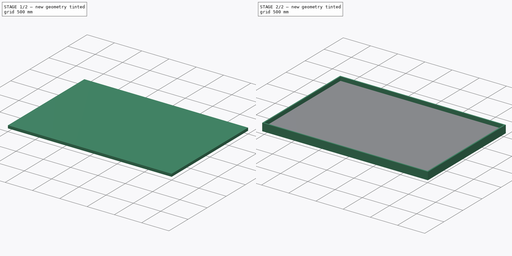
[diagram: build sequence overview — one tinted view per stage of 2, left to right]
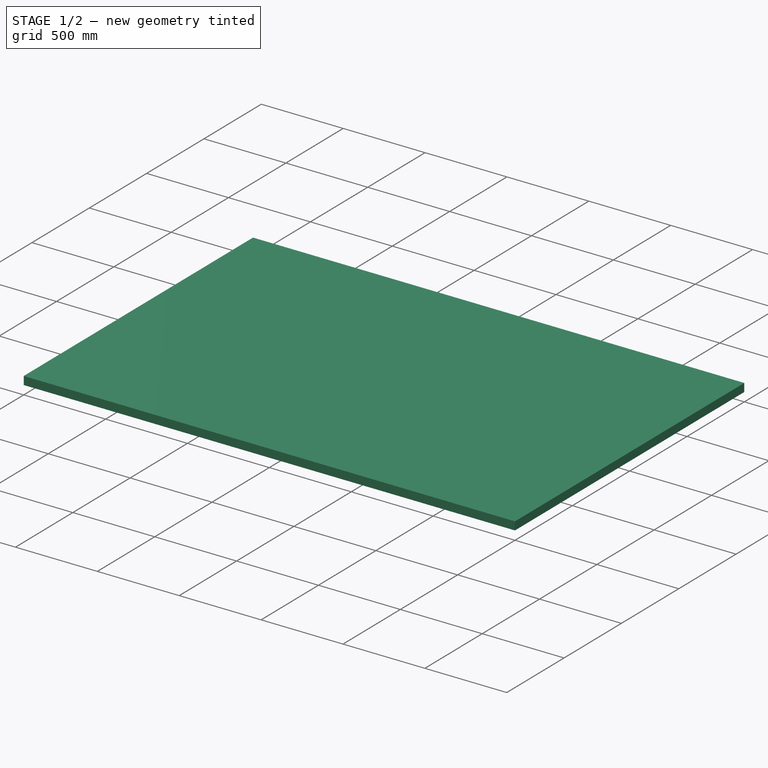
[diagram: stage 1 of 2 — iso view after this stage's code; geometry added in this stage tinted green]
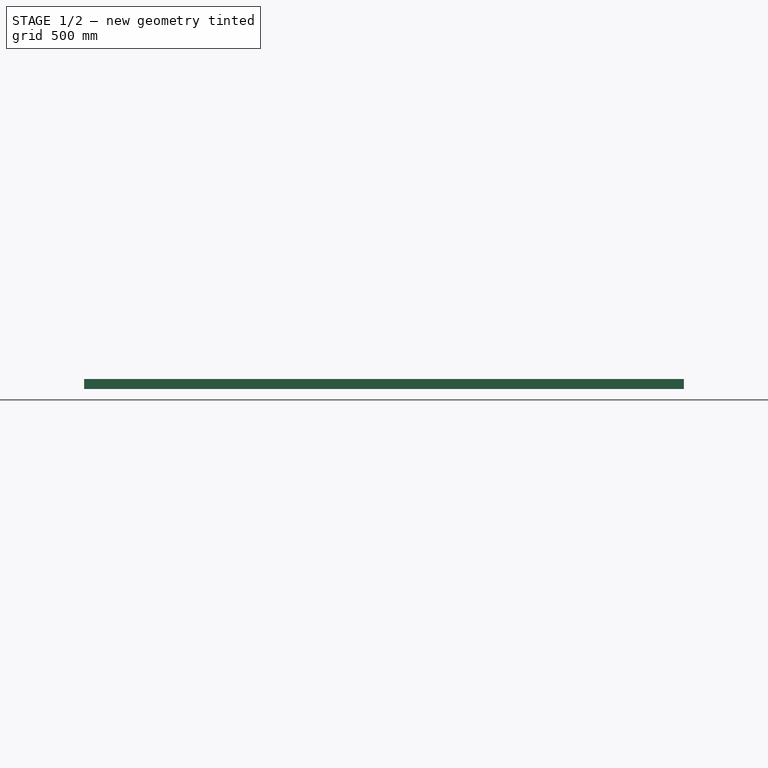
[diagram: stage 1 of 2 — front view after this stage's code; geometry added in this stage tinted green]
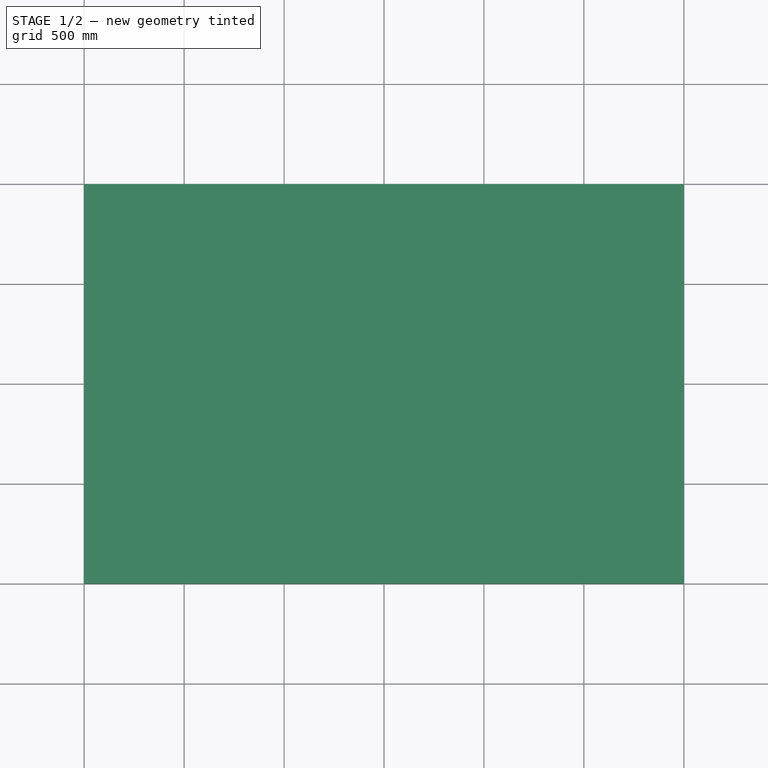
[diagram: stage 1 of 2 — top view after this stage's code; geometry added in this stage tinted green]
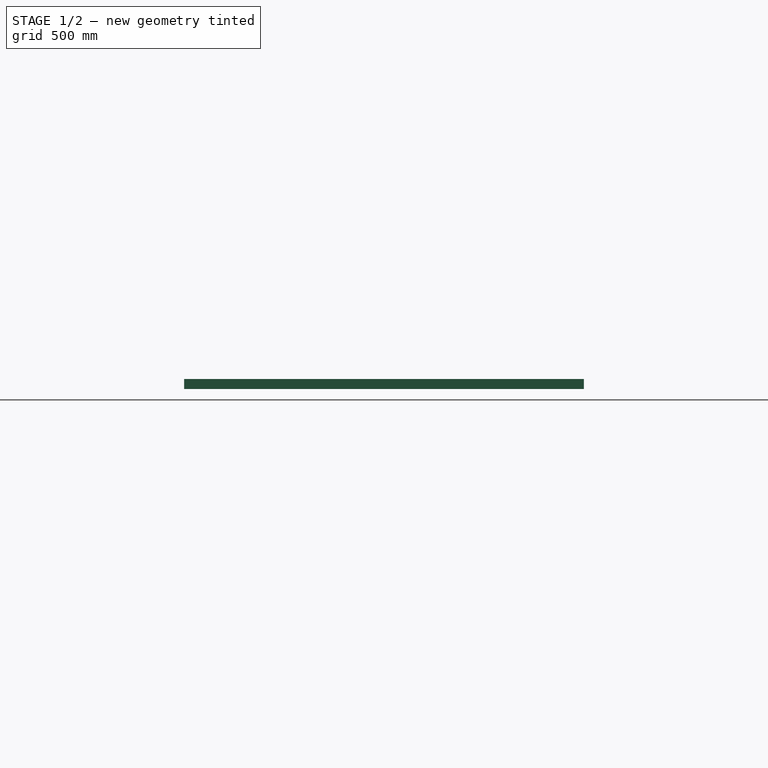
[diagram: stage 1 of 2 — right view after this stage's code; geometry added in this stage tinted green]
FCSTD DOCUMENT  (FreeCAD 0.16R6703 (Git))
Label: table
License: Public Domain
LicenseURL: http://en.wikipedia.org/wiki/Public_domain
objects: Sketcher::SketchObject×2, PartDesign::Pad×2
note: 6 computed .brp shape members not serialized (recipe doc carries the construction recipe); baked Part::Feature solids carry a one-line shape summary decoded from their .brp

FEATURE [Sketcher::SketchObject] Sketch  label="table_base_sketch"
  sketch-geometry (4):
    g0: LineSegment StartX=-1500 StartY=1000 StartZ=0 EndX=1500 EndY=1000 EndZ=0
    g1: LineSegment StartX=1500 StartY=1000 StartZ=0 EndX=1500 EndY=-1000 EndZ=0
    g2: LineSegment StartX=1500 StartY=-1000 StartZ=0 EndX=-1500 EndY=-1000 EndZ=0
    g3: LineSegment StartX=-1500 StartY=-1000 StartZ=0 EndX=-1500 EndY=1000 EndZ=0
  constraints (11):
    c: Coincident(g0,g1)
    c: Coincident(g1,g2)
    c: Coincident(g2,g3)
    c: Coincident(g3,g0)
    c: Horizontal(g0)
    c: Horizontal(g2)
    c: Vertical(g1)
    c: Vertical(g3)
    c: Symmetric(g0,g1,g-1)
    c: Distance(g0) = 3000  'table_base_length'
    c: Distance(g3) = 2000  'table_base_width'
FEATURE [PartDesign::Pad] Pad  label="table_base"
  Length = 50
  Length2 = 100
  Sketch = -> Sketch
  Type = 0
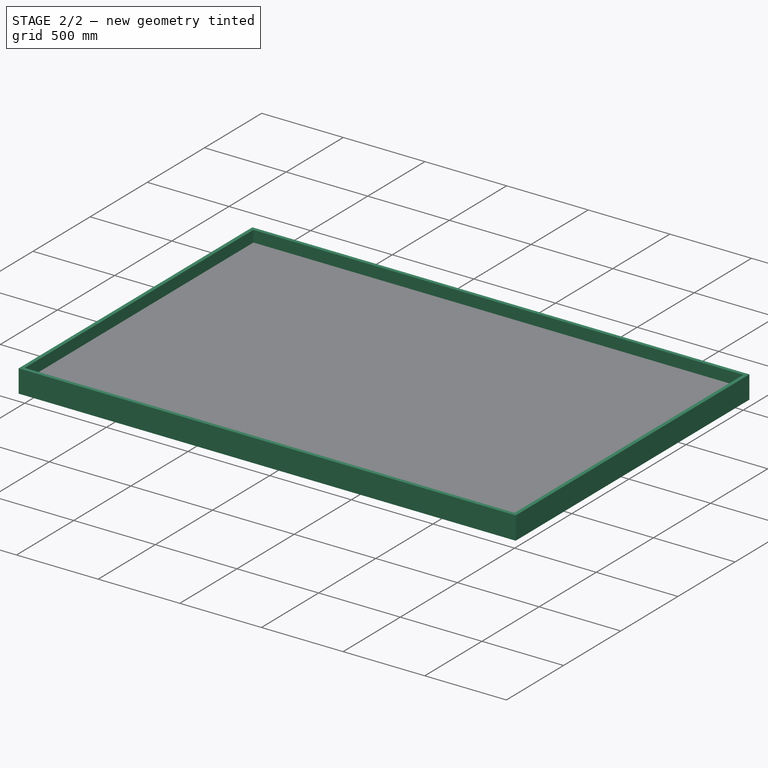
[diagram: stage 2 of 2 — iso view after this stage's code; geometry added in this stage tinted green]
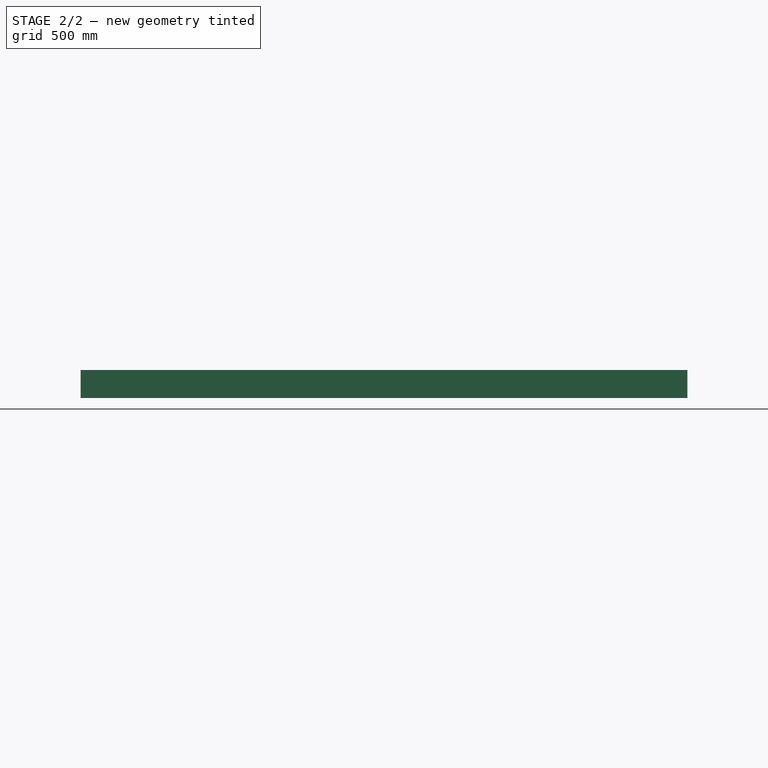
[diagram: stage 2 of 2 — front view after this stage's code; geometry added in this stage tinted green]
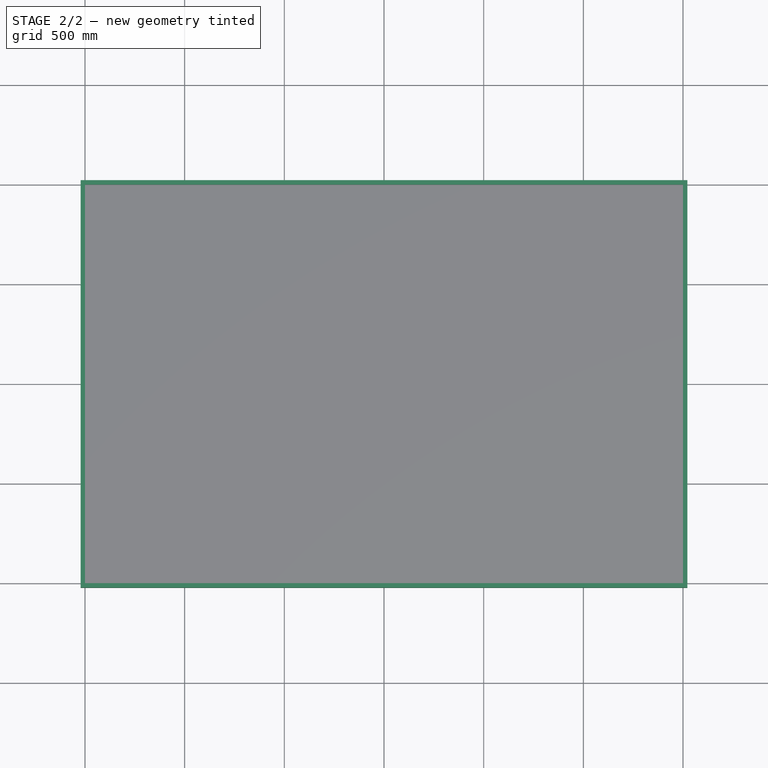
[diagram: stage 2 of 2 — top view after this stage's code; geometry added in this stage tinted green]
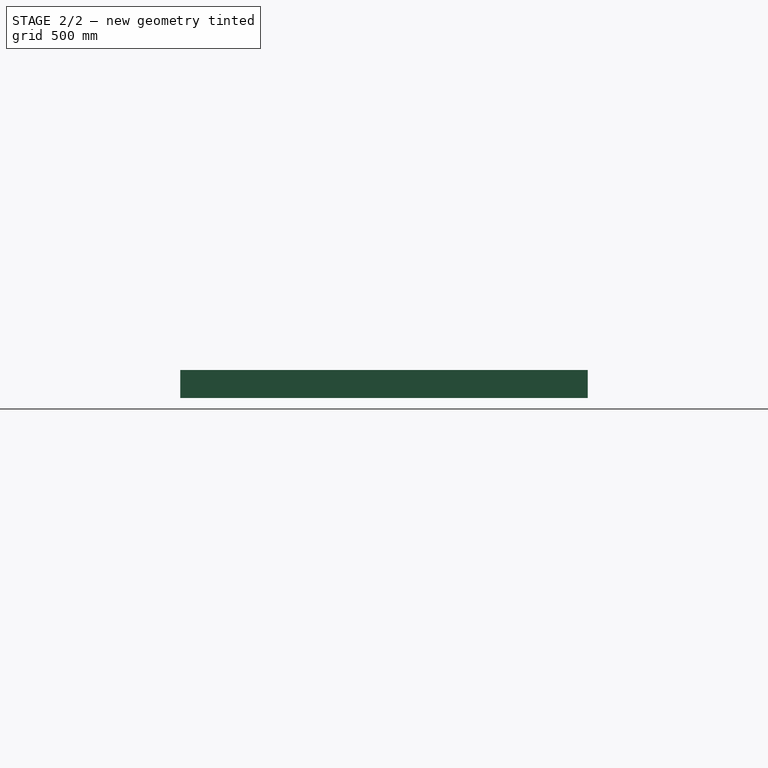
[diagram: stage 2 of 2 — right view after this stage's code; geometry added in this stage tinted green]
FEATURE [Sketcher::SketchObject] Sketch001  label="table_borders_sketch"
  ExternalGeometry = -> [Pad]
  Placement = pos=(0,0,50) rot=(0,0,1;0rad)
  Support = -> Pad [Face6]
  sketch-geometry (8):
    g0: LineSegment StartX=-1522 StartY=1022 StartZ=0 EndX=1522 EndY=1022 EndZ=0
    g1: LineSegment StartX=1522 StartY=1022 StartZ=0 EndX=1522 EndY=-1022 EndZ=0
    g2: LineSegment StartX=1522 StartY=-1022 StartZ=0 EndX=-1522 EndY=-1022 EndZ=0
    g3: LineSegment StartX=-1522 StartY=-1022 StartZ=0 EndX=-1522 EndY=1022 EndZ=0
    g4: LineSegment StartX=-1500 StartY=1000 StartZ=0 EndX=1500 EndY=1000 EndZ=0
    g5: LineSegment StartX=1500 StartY=1000 StartZ=0 EndX=1500 EndY=-1000 EndZ=0
    g6: LineSegment StartX=1500 StartY=-1000 StartZ=0 EndX=-1500 EndY=-1000 EndZ=0
    g7: LineSegment StartX=-1500 StartY=-1000 StartZ=0 EndX=-1500 EndY=1000 EndZ=0
  constraints (21):
    c: Coincident(g0,g1)
    c: Coincident(g1,g2)
    c: Coincident(g2,g3)
    c: Coincident(g3,g0)
    c: Horizontal(g0)
    c: Horizontal(g2)
    c: Vertical(g1)
    c: Vertical(g3)
    c: Symmetric(g0,g1,g-1)
    c: DistanceY(g-3,g0) = 22
    c: DistanceX(g0,g-3) = 22
    c: Coincident(g4,g5)
    c: Coincident(g5,g6)
    c: Coincident(g6,g7)
    c: Coincident(g7,g4)
    c: Horizontal(g4)
    c: Horizontal(g6)
    c: Vertical(g5)
    c: Vertical(g7)
    c: Symmetric(g4,g5,g-1)
    c: Coincident(g4,g-3)
FEATURE [PartDesign::Pad] Pad001  label="table_borders"
  Length = 140
  Length2 = 100
  Midplane = true
  Sketch = -> Sketch001
  Type = 0
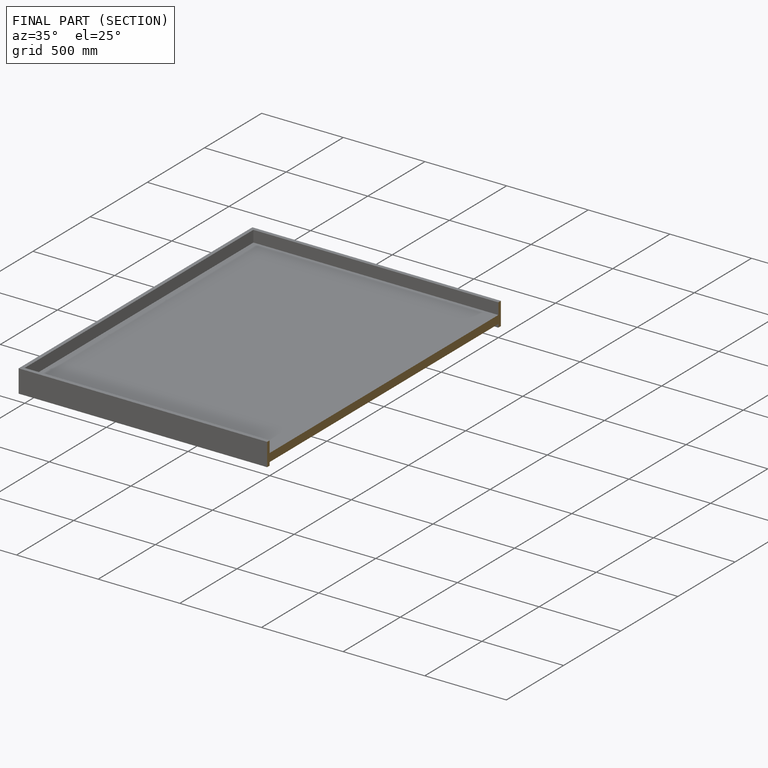
[diagram: finished part — half-section view (interior)]
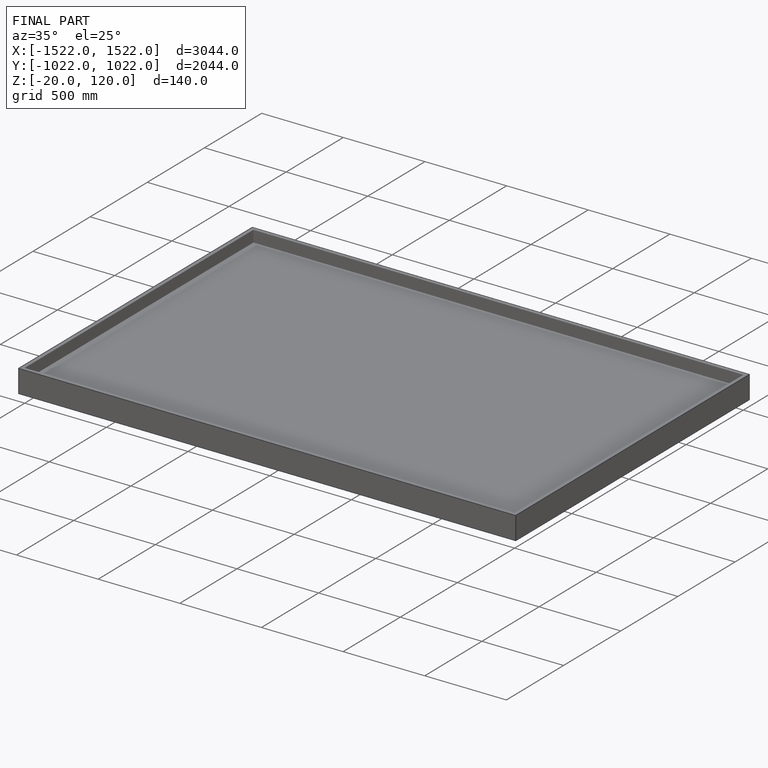
[diagram: finished part — iso view with bounding-box wireframe]
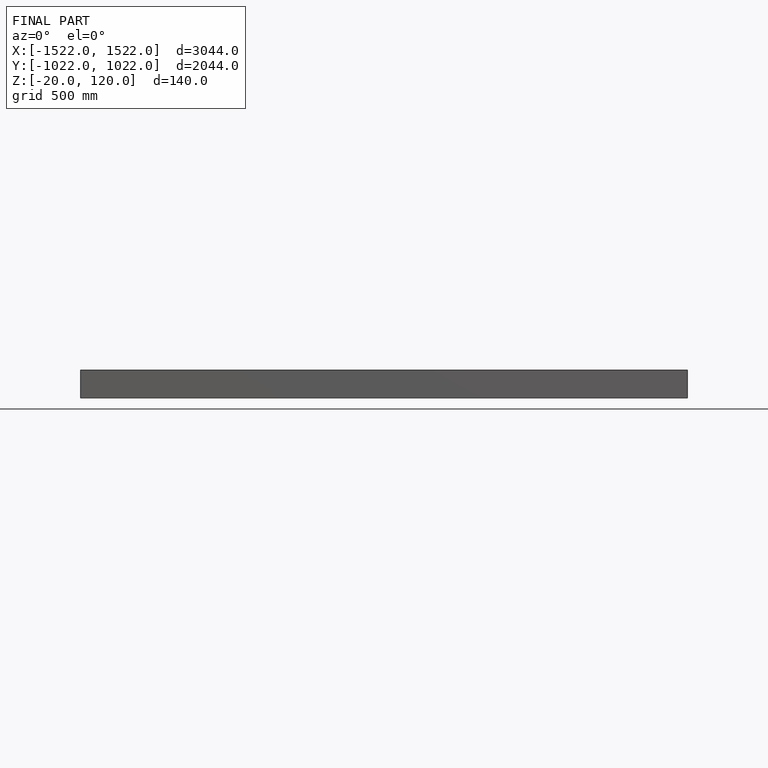
[diagram: finished part — front view with bounding-box wireframe]
